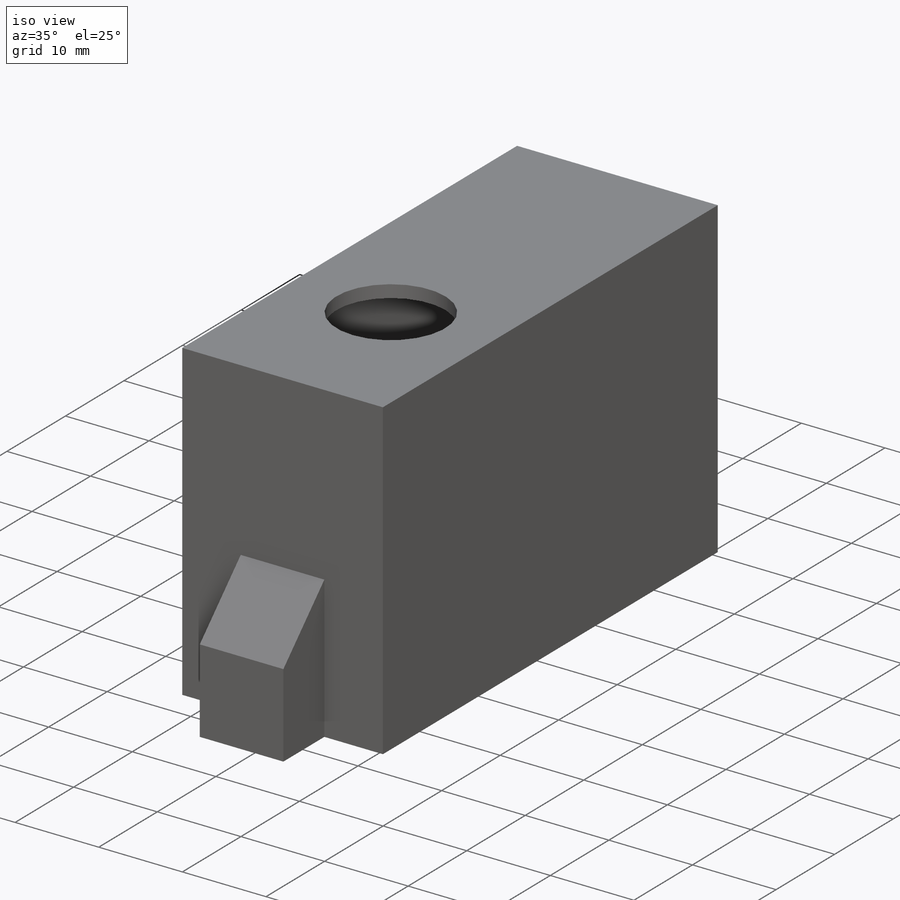
[diagram: iso view]
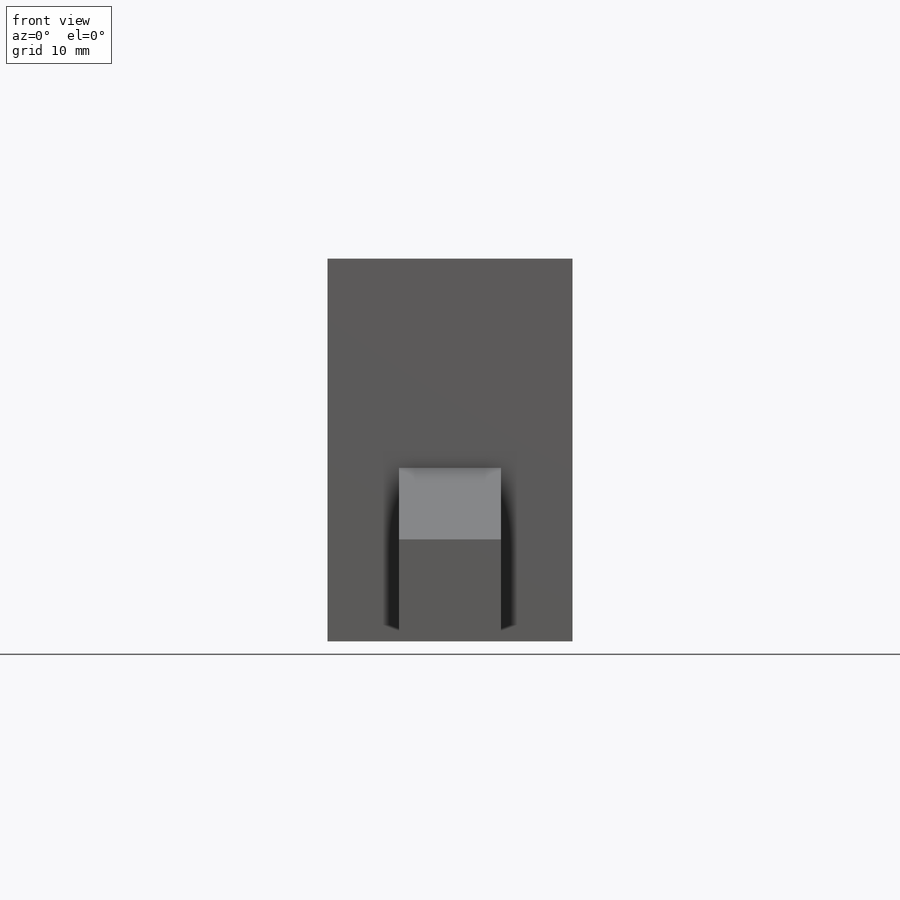
[diagram: front view]
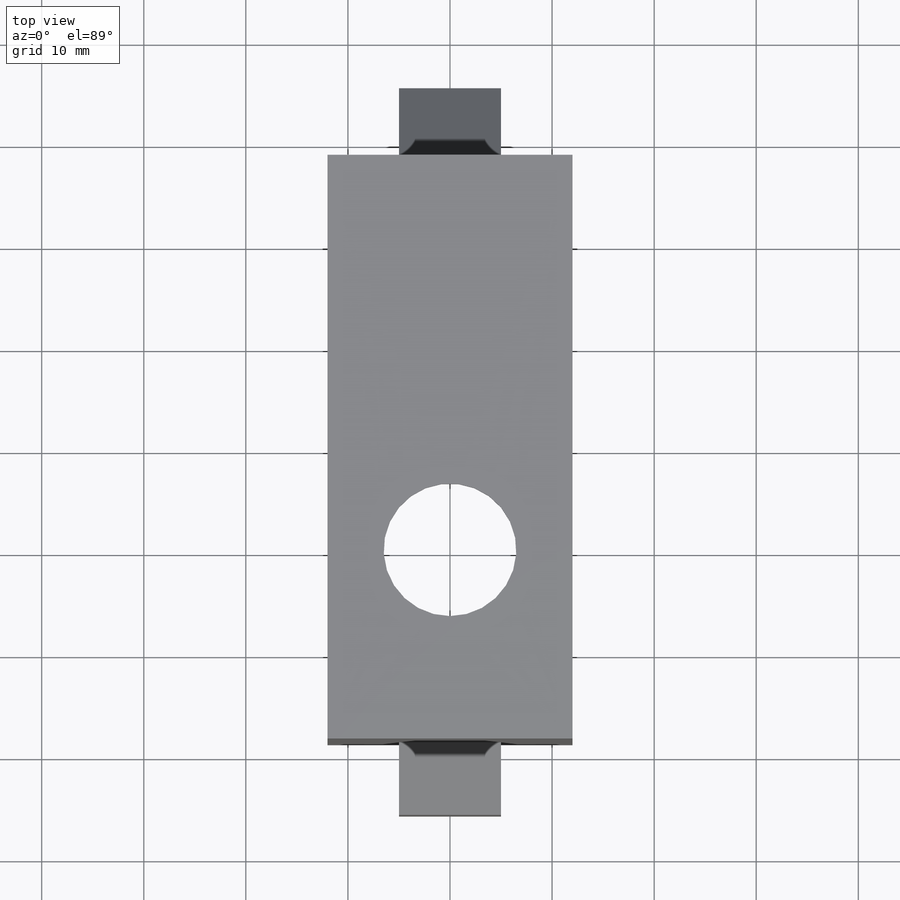
[diagram: top view]
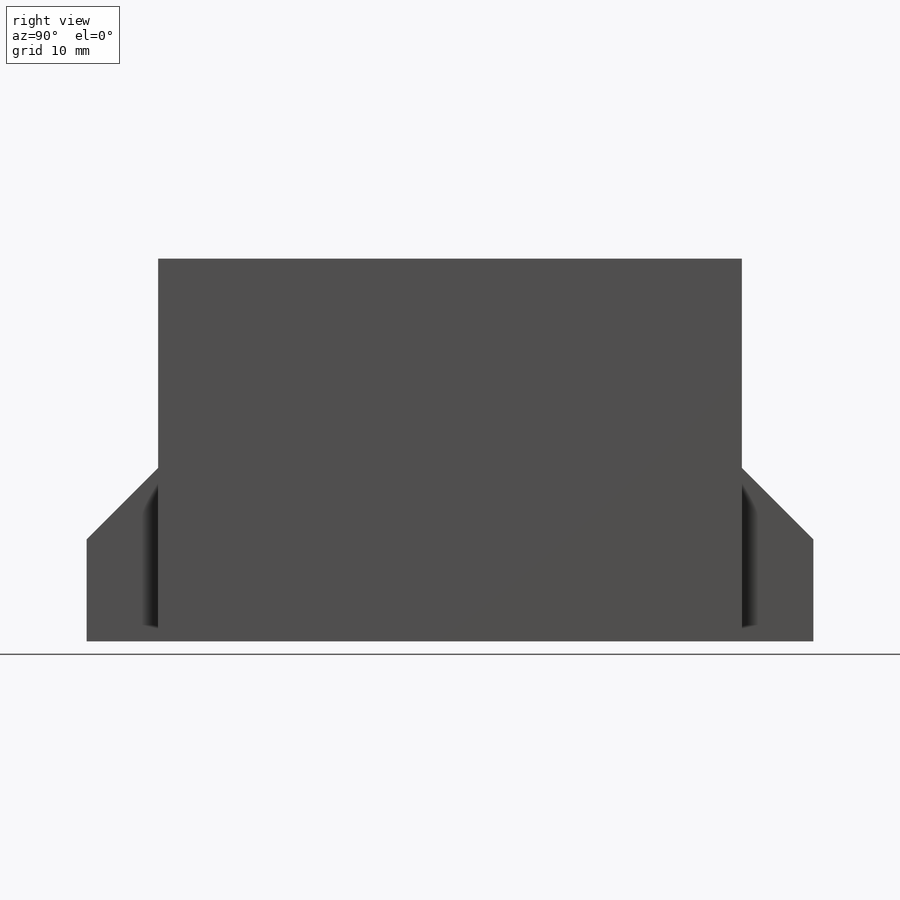
[diagram: right view]
SOLIDWORKS PART (.sldprt)
format: sldprt  version: not decoded by parser v0  size: 212,992 bytes
history: native  units: mm
features: sketch x6, extrude x3, cut_extrude x3, material x1, shell x1, chamfer x1 (+13 scaffold rows collapsed)
feature tree (28):
  scaffold x13  (default folders/planes/origin — collapsed)
  material  "Material <not specified>"
  sketch  "Sketch1"  dims[D1=20.0mm D2=53.2mm D3=10.0mm D4=26.6mm]
  extrude  "Boss-Extrude1"  Depth=36mm
  shell  "Shell1"  Thickness=2mm
  sketch  "Sketch2"  dims[D1=18.5mm]
  cut_extrude  "Cut-Extrude1"  Depth=5mm
  sketch  "Sketch3"  dims[D1=10.0mm D2=7.0mm D3=10.0mm]
  extrude  "Boss-Extrude2"  Depth=7mm
  sketch  "Sketch4"  dims[D1=7.0mm D2=10.0mm D3=10.0mm]
  extrude  "Boss-Extrude3"  Depth=7mm
  sketch  "Sketch5"  dims[D1=4.0mm D2=4.0mm]
  cut_extrude  "Cut-Extrude2"  Depth=7mm
  chamfer  "Chamfer1"  Distance=7mm Angle=45deg
  sketch  "Sketch6"
  cut_extrude  "Cut-Extrude3"  Depth=0.5mm
decode coverage: 13 of 14 modeling features carry decoded parameters
note: suppression state not decoded; provenance and decode notes live in map.json
